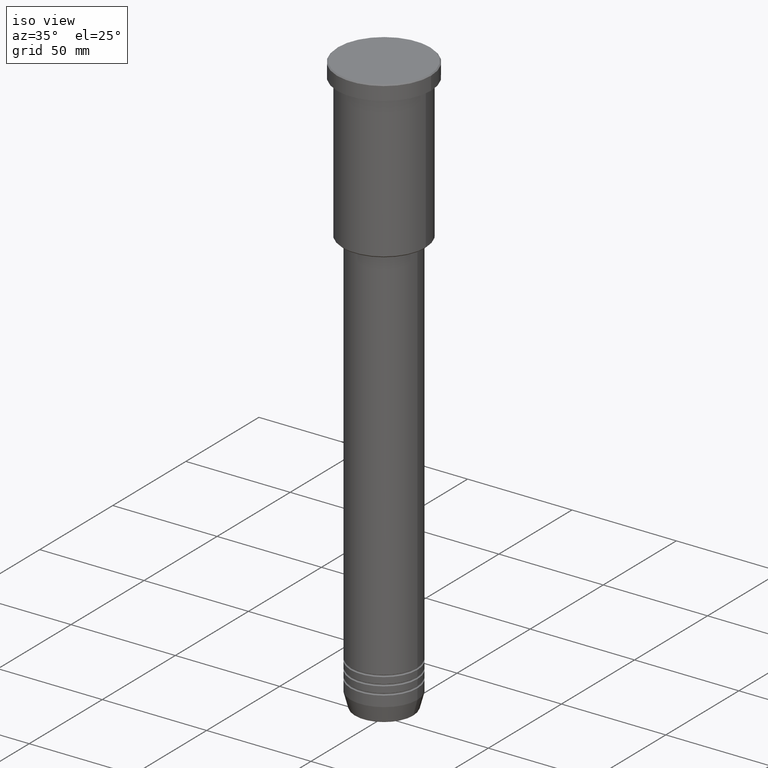
[diagram: clean part render]
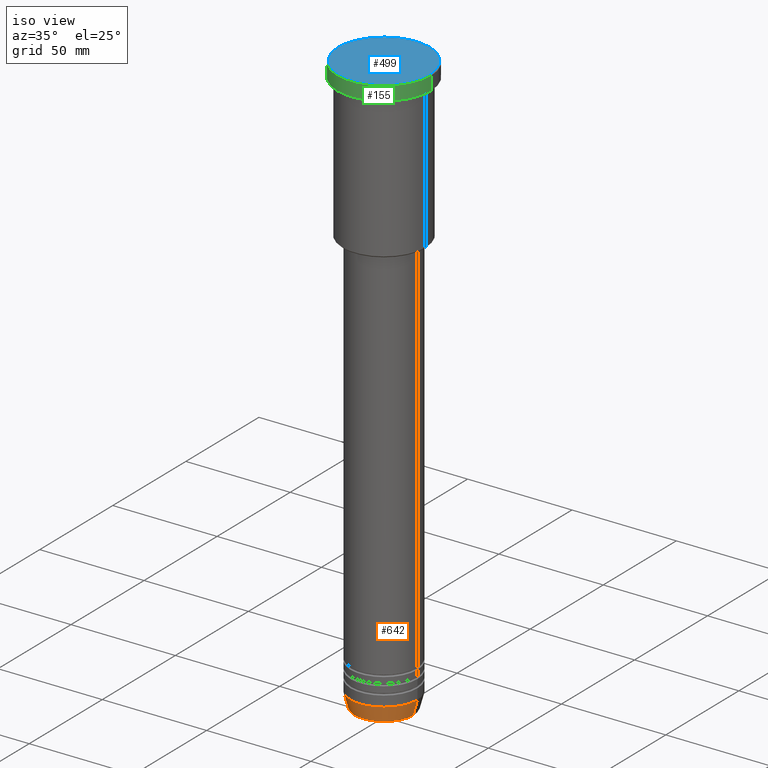
[diagram: same view with three faces highlighted in distinct colors, each labeled with its STEP entity id]
A machine part, iso view with three faces highlighted in distinct colors.
Their STEP definitions:

[orange] entity #642 — the highlighted conical surface has half-angle 15 deg.
#8 = CONICAL_SURFACE ( 'NONE', #730, 16.00000000000000000, 0.2617993877991500740 ) ;
#46 = EDGE_CURVE ( 'NONE', #542, #87, #299, .T. ) ;
#51 = CARTESIAN_POINT ( 'NONE',  ( 16.00000000000000000, 0.000000000000000000, -272.5000000000000000 ) ) ;
#70 = VECTOR ( 'NONE', #500, 1000.000000000000000 ) ;
#87 = VERTEX_POINT ( 'NONE', #51 ) ;
#90 = AXIS2_PLACEMENT_3D ( 'NONE', #96, #265, #838 ) ;
#96 = CARTESIAN_POINT ( 'NONE',  ( 0.000000000000000000, 0.000000000000000000, -279.6294095225512706 ) ) ;
#217 = DIRECTION ( 'NONE',  ( 1.000000000000000000, 0.000000000000000000, 0.000000000000000000 ) ) ;
#229 = EDGE_CURVE ( 'NONE', #891, #87, #489, .T. ) ;
#265 = DIRECTION ( 'NONE',  ( -0.000000000000000000, -0.000000000000000000, 1.000000000000000000 ) ) ;
#299 = CIRCLE ( 'NONE', #690, 16.00000000000000000 ) ;
#300 = VECTOR ( 'NONE', #1182, 1000.000000000000000 ) ;
#473 = DIRECTION ( 'NONE',  ( -0.000000000000000000, -0.000000000000000000, 1.000000000000000000 ) ) ;
#489 = LINE ( 'NONE', #631, #300 ) ;
#500 = DIRECTION ( 'NONE',  ( -0.2588190451025213501, 3.169619151431772337E-17, 0.9659258262890680902 ) ) ;
#504 = CARTESIAN_POINT ( 'NONE',  ( 14.08968047592161632, 0.000000000000000000, -279.6294095225512706 ) ) ;
#509 = EDGE_LOOP ( 'NONE', ( #885, #976, #701, #554 ) ) ;
#536 = FACE_OUTER_BOUND ( 'NONE', #509, .T. ) ;
#542 = VERTEX_POINT ( 'NONE', #902 ) ;
#554 = ORIENTED_EDGE ( 'NONE', *, *, #46, .F. ) ;
#631 = CARTESIAN_POINT ( 'NONE',  ( 16.00000000000000000, 0.000000000000000000, -272.5000000000000000 ) ) ;
#642 = ADVANCED_FACE ( 'NONE', ( #536 ), #8, .T. ) ;
#690 = AXIS2_PLACEMENT_3D ( 'NONE', #782, #473, #217 ) ;
#695 = CARTESIAN_POINT ( 'NONE',  ( -16.00000000000000000, 1.959434878635765131E-15, -272.5000000000000000 ) ) ;
#701 = ORIENTED_EDGE ( 'NONE', *, *, #229, .T. ) ;
#730 = AXIS2_PLACEMENT_3D ( 'NONE', #1009, #914, #1088 ) ;
#782 = CARTESIAN_POINT ( 'NONE',  ( 0.000000000000000000, 0.000000000000000000, -272.5000000000000000 ) ) ;
#809 = EDGE_CURVE ( 'NONE', #877, #542, #1048, .T. ) ;
#838 = DIRECTION ( 'NONE',  ( 1.000000000000000000, 0.000000000000000000, 0.000000000000000000 ) ) ;
#877 = VERTEX_POINT ( 'NONE', #959 ) ;
#885 = ORIENTED_EDGE ( 'NONE', *, *, #809, .F. ) ;
#891 = VERTEX_POINT ( 'NONE', #504 ) ;
#902 = CARTESIAN_POINT ( 'NONE',  ( -16.00000000000000000, 1.959434878635765131E-15, -272.5000000000000000 ) ) ;
#914 = DIRECTION ( 'NONE',  ( -0.000000000000000000, -0.000000000000000000, 1.000000000000000000 ) ) ;
#959 = CARTESIAN_POINT ( 'NONE',  ( -14.08968047592161632, 1.842461544110200874E-15, -279.6294095225512706 ) ) ;
#976 = ORIENTED_EDGE ( 'NONE', *, *, #1115, .T. ) ;
#1009 = CARTESIAN_POINT ( 'NONE',  ( 0.000000000000000000, 0.000000000000000000, -272.5000000000000000 ) ) ;
#1048 = LINE ( 'NONE', #695, #70 ) ;
#1060 = CIRCLE ( 'NONE', #90, 14.08968047592161632 ) ;
#1088 = DIRECTION ( 'NONE',  ( 1.000000000000000000, 0.000000000000000000, 0.000000000000000000 ) ) ;
#1115 = EDGE_CURVE ( 'NONE', #877, #891, #1060, .T. ) ;
#1182 = DIRECTION ( 'NONE',  ( 0.2588190451025213501, 0.000000000000000000, 0.9659258262890680902 ) ) ;

[blue] entity #499 — the highlighted planar face has unit normal (0, -0, 1).
#38 = ORIENTED_EDGE ( 'NONE', *, *, #283, .T. ) ;
#49 = CARTESIAN_POINT ( 'NONE',  ( 0.000000000000000000, 0.000000000000000000, 0.000000000000000000 ) ) ;
#78 = EDGE_LOOP ( 'NONE', ( #1005, #38 ) ) ;
#79 = DIRECTION ( 'NONE',  ( 1.000000000000000000, 0.000000000000000000, 0.000000000000000000 ) ) ;
#167 = DIRECTION ( 'NONE',  ( -0.000000000000000000, -0.000000000000000000, 1.000000000000000000 ) ) ;
#171 = CARTESIAN_POINT ( 'NONE',  ( 0.000000000000000000, 0.000000000000000000, 0.000000000000000000 ) ) ;
#216 = AXIS2_PLACEMENT_3D ( 'NONE', #517, #167, #337 ) ;
#227 = DIRECTION ( 'NONE',  ( 0.000000000000000000, -0.000000000000000000, 1.000000000000000000 ) ) ;
#254 = CIRCLE ( 'NONE', #831, 22.00000000000004619 ) ;
#283 = EDGE_CURVE ( 'NONE', #926, #1113, #1064, .T. ) ;
#337 = DIRECTION ( 'NONE',  ( 1.000000000000000000, 0.000000000000000000, 0.000000000000000000 ) ) ;
#424 = PLANE ( 'NONE',  #864 ) ;
#441 = FACE_OUTER_BOUND ( 'NONE', #78, .T. ) ;
#499 = ADVANCED_FACE ( 'NONE', ( #441 ), #424, .T. ) ;
#517 = CARTESIAN_POINT ( 'NONE',  ( 0.000000000000000000, 0.000000000000000000, 0.000000000000000000 ) ) ;
#534 = DIRECTION ( 'NONE',  ( -0.000000000000000000, -0.000000000000000000, 1.000000000000000000 ) ) ;
#620 = CARTESIAN_POINT ( 'NONE',  ( 22.00000000000004619, 2.724839128102864146E-15, 0.000000000000000000 ) ) ;
#819 = DIRECTION ( 'NONE',  ( 1.000000000000000000, 0.000000000000000000, 0.000000000000000000 ) ) ;
#831 = AXIS2_PLACEMENT_3D ( 'NONE', #171, #534, #79 ) ;
#864 = AXIS2_PLACEMENT_3D ( 'NONE', #49, #227, #819 ) ;
#924 = CARTESIAN_POINT ( 'NONE',  ( -22.00000000000004619, 0.000000000000000000, 0.000000000000000000 ) ) ;
#926 = VERTEX_POINT ( 'NONE', #620 ) ;
#1005 = ORIENTED_EDGE ( 'NONE', *, *, #1052, .T. ) ;
#1052 = EDGE_CURVE ( 'NONE', #1113, #926, #254, .T. ) ;
#1064 = CIRCLE ( 'NONE', #216, 22.00000000000004619 ) ;
#1113 = VERTEX_POINT ( 'NONE', #924 ) ;

[green] entity #155 — the highlighted cylindrical surface (partial cylindrical patch) has radius 22.5 mm, axis along (-0, -0, 1).
#48 = AXIS2_PLACEMENT_3D ( 'NONE', #1058, #61, #435 ) ;
#61 = DIRECTION ( 'NONE',  ( 0.000000000000000000, 0.000000000000000000, -1.000000000000000000 ) ) ;
#71 = LINE ( 'NONE', #640, #995 ) ;
#98 = VERTEX_POINT ( 'NONE', #698 ) ;
#152 = VECTOR ( 'NONE', #837, 1000.000000000000000 ) ;
#155 = ADVANCED_FACE ( 'NONE', ( #728 ), #540, .T. ) ;
#161 = EDGE_CURVE ( 'NONE', #98, #786, #867, .T. ) ;
#175 = CARTESIAN_POINT ( 'NONE',  ( -22.50000000000000000, 2.755455298081544778E-15, 0.000000000000000000 ) ) ;
#231 = EDGE_CURVE ( 'NONE', #786, #1031, #71, .T. ) ;
#284 = DIRECTION ( 'NONE',  ( 1.000000000000000000, 0.000000000000000000, 0.000000000000000000 ) ) ;
#310 = CARTESIAN_POINT ( 'NONE',  ( 0.000000000000000000, 0.000000000000000000, -6.999999999999995559 ) ) ;
#329 = EDGE_CURVE ( 'NONE', #98, #535, #1180, .T. ) ;
#346 = DIRECTION ( 'NONE',  ( -0.000000000000000000, -0.000000000000000000, 1.000000000000000000 ) ) ;
#435 = DIRECTION ( 'NONE',  ( 1.000000000000000000, 0.000000000000000000, 0.000000000000000000 ) ) ;
#453 = CARTESIAN_POINT ( 'NONE',  ( 0.000000000000000000, 0.000000000000000000, 0.000000000000000000 ) ) ;
#474 = DIRECTION ( 'NONE',  ( 1.000000000000000000, 0.000000000000000000, 0.000000000000000000 ) ) ;
#524 = ORIENTED_EDGE ( 'NONE', *, *, #231, .T. ) ;
#528 = CARTESIAN_POINT ( 'NONE',  ( -22.50000000000000000, 2.755455298081544778E-15, -0.4999999999999379940 ) ) ;
#535 = VERTEX_POINT ( 'NONE', #528 ) ;
#540 = CYLINDRICAL_SURFACE ( 'NONE', #887, 22.50000000000000000 ) ;
#550 = EDGE_CURVE ( 'NONE', #1031, #535, #1174, .T. ) ;
#591 = AXIS2_PLACEMENT_3D ( 'NONE', #310, #1040, #284 ) ;
#640 = CARTESIAN_POINT ( 'NONE',  ( 22.50000000000000000, 0.000000000000000000, 0.000000000000000000 ) ) ;
#698 = CARTESIAN_POINT ( 'NONE',  ( -22.50000000000000000, 2.755455298081544778E-15, -6.999999999999995559 ) ) ;
#724 = ORIENTED_EDGE ( 'NONE', *, *, #161, .T. ) ;
#728 = FACE_OUTER_BOUND ( 'NONE', #998, .T. ) ;
#736 = DIRECTION ( 'NONE',  ( -0.000000000000000000, -0.000000000000000000, 1.000000000000000000 ) ) ;
#786 = VERTEX_POINT ( 'NONE', #955 ) ;
#837 = DIRECTION ( 'NONE',  ( -0.000000000000000000, -0.000000000000000000, 1.000000000000000000 ) ) ;
#867 = CIRCLE ( 'NONE', #591, 22.50000000000000000 ) ;
#887 = AXIS2_PLACEMENT_3D ( 'NONE', #453, #736, #474 ) ;
#955 = CARTESIAN_POINT ( 'NONE',  ( 22.50000000000000000, 0.000000000000000000, -6.999999999999995559 ) ) ;
#995 = VECTOR ( 'NONE', #346, 1000.000000000000000 ) ;
#998 = EDGE_LOOP ( 'NONE', ( #1094, #724, #524, #1010 ) ) ;
#1010 = ORIENTED_EDGE ( 'NONE', *, *, #550, .T. ) ;
#1031 = VERTEX_POINT ( 'NONE', #1093 ) ;
#1040 = DIRECTION ( 'NONE',  ( -0.000000000000000000, -0.000000000000000000, 1.000000000000000000 ) ) ;
#1058 = CARTESIAN_POINT ( 'NONE',  ( 0.000000000000000000, 0.000000000000000000, -0.4999999999999379940 ) ) ;
#1093 = CARTESIAN_POINT ( 'NONE',  ( 22.50000000000000000, 0.000000000000000000, -0.4999999999999379940 ) ) ;
#1094 = ORIENTED_EDGE ( 'NONE', *, *, #329, .F. ) ;
#1174 = CIRCLE ( 'NONE', #48, 22.50000000000000000 ) ;
#1180 = LINE ( 'NONE', #175, #152 ) ;